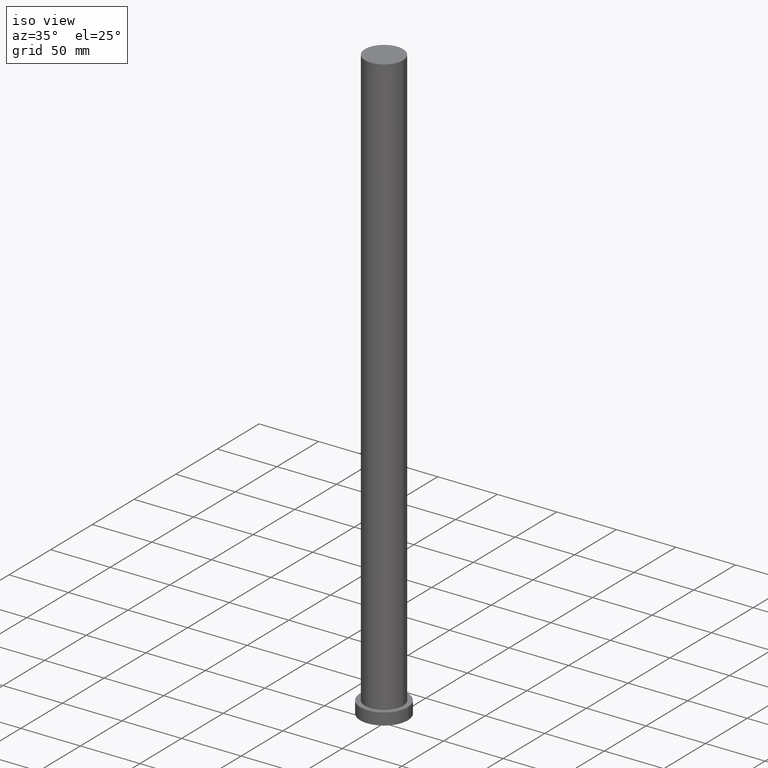
[diagram: clean part render]
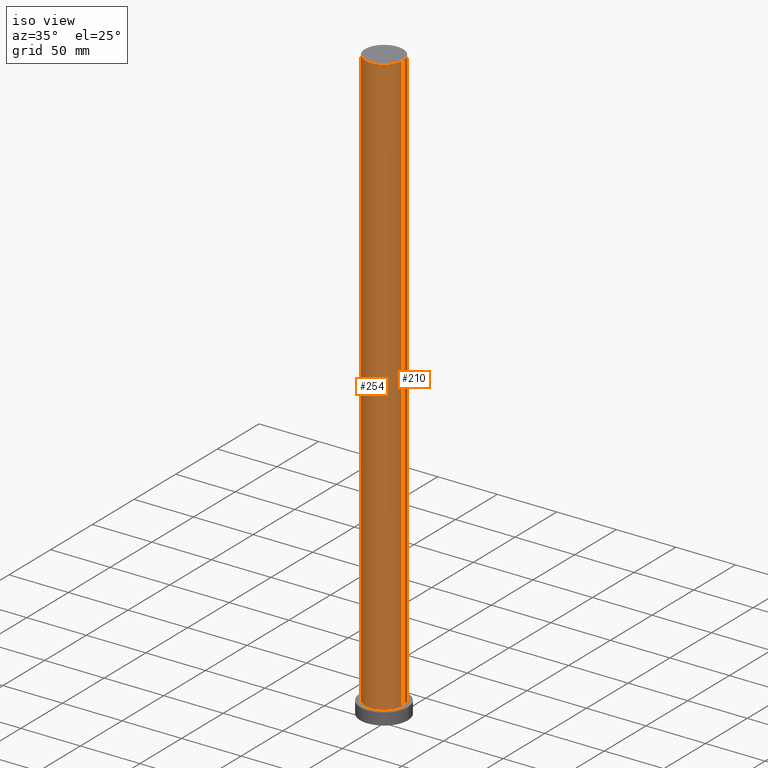
[diagram: same view with one multi-face feature highlighted, each face labeled with its STEP entity id]
A machine part, iso view. The highlighted faces form ONE feature: a constant-radius fillet chain: 2 tangent blend faces with common blend radius 16 mm. The faces share edges in the B-rep.
Their STEP definitions:
[1] entity #254 (Cylinder):
#2 = DIRECTION ( 'NONE',  ( -0.000000000000000000, -0.000000000000000000, -1.000000000000000000 ) ) ;
#8 = DIRECTION ( 'NONE',  ( 1.000000000000000000, 0.000000000000000000, 0.000000000000000000 ) ) ;
#19 = DIRECTION ( 'NONE',  ( -0.000000000000000000, -0.000000000000000000, -1.000000000000000000 ) ) ;
#21 = CARTESIAN_POINT ( 'NONE',  ( 16.00000000000000000, 1.959434878635765131E-15, 500.0000000000000000 ) ) ;
#25 = CARTESIAN_POINT ( 'NONE',  ( -16.00000000000000000, 0.000000000000000000, 500.0000000000000000 ) ) ;
#31 = EDGE_CURVE ( 'NONE', #47, #238, #150, .T. ) ;
#38 = DIRECTION ( 'NONE',  ( 1.000000000000000000, 0.000000000000000000, 0.000000000000000000 ) ) ;
#45 = AXIS2_PLACEMENT_3D ( 'NONE', #105, #187, #8 ) ;
#47 = VERTEX_POINT ( 'NONE', #142 ) ;
#48 = CYLINDRICAL_SURFACE ( 'NONE', #149, 16.00000000000000000 ) ;
#52 = ORIENTED_EDGE ( 'NONE', *, *, #31, .F. ) ;
#54 = FACE_OUTER_BOUND ( 'NONE', #229, .T. ) ;
#61 = CARTESIAN_POINT ( 'NONE',  ( 16.00000000000000000, 1.959434878635765131E-15, 10.00000000000000000 ) ) ;
#67 = AXIS2_PLACEMENT_3D ( 'NONE', #228, #118, #38 ) ;
#68 = VERTEX_POINT ( 'NONE', #61 ) ;
#69 = DIRECTION ( 'NONE',  ( -0.000000000000000000, -0.000000000000000000, -1.000000000000000000 ) ) ;
#70 = CARTESIAN_POINT ( 'NONE',  ( 0.000000000000000000, 0.000000000000000000, 500.0000000000000000 ) ) ;
#95 = LINE ( 'NONE', #183, #240 ) ;
#100 = LINE ( 'NONE', #25, #145 ) ;
#105 = CARTESIAN_POINT ( 'NONE',  ( 0.000000000000000000, 0.000000000000000000, 10.00000000000000000 ) ) ;
#117 = ORIENTED_EDGE ( 'NONE', *, *, #192, .T. ) ;
#118 = DIRECTION ( 'NONE',  ( 0.000000000000000000, 0.000000000000000000, 1.000000000000000000 ) ) ;
#141 = EDGE_CURVE ( 'NONE', #167, #68, #161, .T. ) ;
#142 = CARTESIAN_POINT ( 'NONE',  ( -16.00000000000000000, 0.000000000000000000, 500.0000000000000000 ) ) ;
#145 = VECTOR ( 'NONE', #2, 1000.000000000000000 ) ;
#149 = AXIS2_PLACEMENT_3D ( 'NONE', #70, #69, #222 ) ;
#150 = CIRCLE ( 'NONE', #67, 16.00000000000000000 ) ;
#151 = ORIENTED_EDGE ( 'NONE', *, *, #217, .F. ) ;
#161 = CIRCLE ( 'NONE', #45, 16.00000000000000000 ) ;
#167 = VERTEX_POINT ( 'NONE', #198 ) ;
#183 = CARTESIAN_POINT ( 'NONE',  ( 16.00000000000000000, 1.959434878635765131E-15, 500.0000000000000000 ) ) ;
#187 = DIRECTION ( 'NONE',  ( 0.000000000000000000, 0.000000000000000000, 1.000000000000000000 ) ) ;
#192 = EDGE_CURVE ( 'NONE', #47, #167, #100, .T. ) ;
#198 = CARTESIAN_POINT ( 'NONE',  ( -16.00000000000000000, 0.000000000000000000, 10.00000000000000000 ) ) ;
#217 = EDGE_CURVE ( 'NONE', #238, #68, #95, .T. ) ;
#222 = DIRECTION ( 'NONE',  ( -1.000000000000000000, 0.000000000000000000, 0.000000000000000000 ) ) ;
#228 = CARTESIAN_POINT ( 'NONE',  ( 0.000000000000000000, 0.000000000000000000, 500.0000000000000000 ) ) ;
#229 = EDGE_LOOP ( 'NONE', ( #151, #52, #117, #255 ) ) ;
#238 = VERTEX_POINT ( 'NONE', #21 ) ;
#240 = VECTOR ( 'NONE', #19, 1000.000000000000000 ) ;
#254 = ADVANCED_FACE ( 'NONE', ( #54 ), #48, .T. ) ;
#255 = ORIENTED_EDGE ( 'NONE', *, *, #141, .T. ) ;
[2] entity #210 (Cylinder):
#1 = CYLINDRICAL_SURFACE ( 'NONE', #191, 16.00000000000000000 ) ;
#2 = DIRECTION ( 'NONE',  ( -0.000000000000000000, -0.000000000000000000, -1.000000000000000000 ) ) ;
#14 = CIRCLE ( 'NONE', #230, 16.00000000000000000 ) ;
#16 = CIRCLE ( 'NONE', #248, 16.00000000000000000 ) ;
#19 = DIRECTION ( 'NONE',  ( -0.000000000000000000, -0.000000000000000000, -1.000000000000000000 ) ) ;
#21 = CARTESIAN_POINT ( 'NONE',  ( 16.00000000000000000, 1.959434878635765131E-15, 500.0000000000000000 ) ) ;
#25 = CARTESIAN_POINT ( 'NONE',  ( -16.00000000000000000, 0.000000000000000000, 500.0000000000000000 ) ) ;
#35 = ORIENTED_EDGE ( 'NONE', *, *, #217, .T. ) ;
#47 = VERTEX_POINT ( 'NONE', #142 ) ;
#50 = DIRECTION ( 'NONE',  ( 1.000000000000000000, 0.000000000000000000, 0.000000000000000000 ) ) ;
#61 = CARTESIAN_POINT ( 'NONE',  ( 16.00000000000000000, 1.959434878635765131E-15, 10.00000000000000000 ) ) ;
#68 = VERTEX_POINT ( 'NONE', #61 ) ;
#72 = CARTESIAN_POINT ( 'NONE',  ( 0.000000000000000000, 0.000000000000000000, 500.0000000000000000 ) ) ;
#74 = EDGE_LOOP ( 'NONE', ( #84, #35, #135, #114 ) ) ;
#84 = ORIENTED_EDGE ( 'NONE', *, *, #213, .F. ) ;
#95 = LINE ( 'NONE', #183, #240 ) ;
#100 = LINE ( 'NONE', #25, #145 ) ;
#114 = ORIENTED_EDGE ( 'NONE', *, *, #192, .F. ) ;
#121 = DIRECTION ( 'NONE',  ( 0.000000000000000000, 0.000000000000000000, 1.000000000000000000 ) ) ;
#133 = EDGE_CURVE ( 'NONE', #68, #167, #16, .T. ) ;
#135 = ORIENTED_EDGE ( 'NONE', *, *, #133, .T. ) ;
#139 = CARTESIAN_POINT ( 'NONE',  ( 0.000000000000000000, 0.000000000000000000, 10.00000000000000000 ) ) ;
#142 = CARTESIAN_POINT ( 'NONE',  ( -16.00000000000000000, 0.000000000000000000, 500.0000000000000000 ) ) ;
#145 = VECTOR ( 'NONE', #2, 1000.000000000000000 ) ;
#157 = FACE_OUTER_BOUND ( 'NONE', #74, .T. ) ;
#158 = DIRECTION ( 'NONE',  ( -1.000000000000000000, 0.000000000000000000, 0.000000000000000000 ) ) ;
#167 = VERTEX_POINT ( 'NONE', #198 ) ;
#176 = CARTESIAN_POINT ( 'NONE',  ( 0.000000000000000000, 0.000000000000000000, 500.0000000000000000 ) ) ;
#183 = CARTESIAN_POINT ( 'NONE',  ( 16.00000000000000000, 1.959434878635765131E-15, 500.0000000000000000 ) ) ;
#191 = AXIS2_PLACEMENT_3D ( 'NONE', #72, #197, #158 ) ;
#192 = EDGE_CURVE ( 'NONE', #47, #167, #100, .T. ) ;
#197 = DIRECTION ( 'NONE',  ( -0.000000000000000000, -0.000000000000000000, -1.000000000000000000 ) ) ;
#198 = CARTESIAN_POINT ( 'NONE',  ( -16.00000000000000000, 0.000000000000000000, 10.00000000000000000 ) ) ;
#205 = DIRECTION ( 'NONE',  ( 1.000000000000000000, 0.000000000000000000, 0.000000000000000000 ) ) ;
#210 = ADVANCED_FACE ( 'NONE', ( #157 ), #1, .T. ) ;
#213 = EDGE_CURVE ( 'NONE', #238, #47, #14, .T. ) ;
#217 = EDGE_CURVE ( 'NONE', #238, #68, #95, .T. ) ;
#230 = AXIS2_PLACEMENT_3D ( 'NONE', #176, #235, #50 ) ;
#235 = DIRECTION ( 'NONE',  ( 0.000000000000000000, 0.000000000000000000, 1.000000000000000000 ) ) ;
#238 = VERTEX_POINT ( 'NONE', #21 ) ;
#240 = VECTOR ( 'NONE', #19, 1000.000000000000000 ) ;
#248 = AXIS2_PLACEMENT_3D ( 'NONE', #139, #121, #205 ) ;